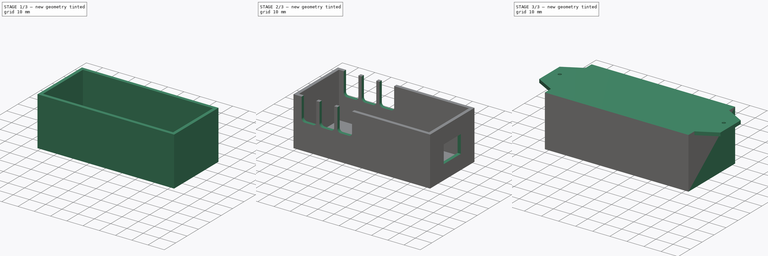
[diagram: build sequence overview — one tinted view per stage of 3, left to right]
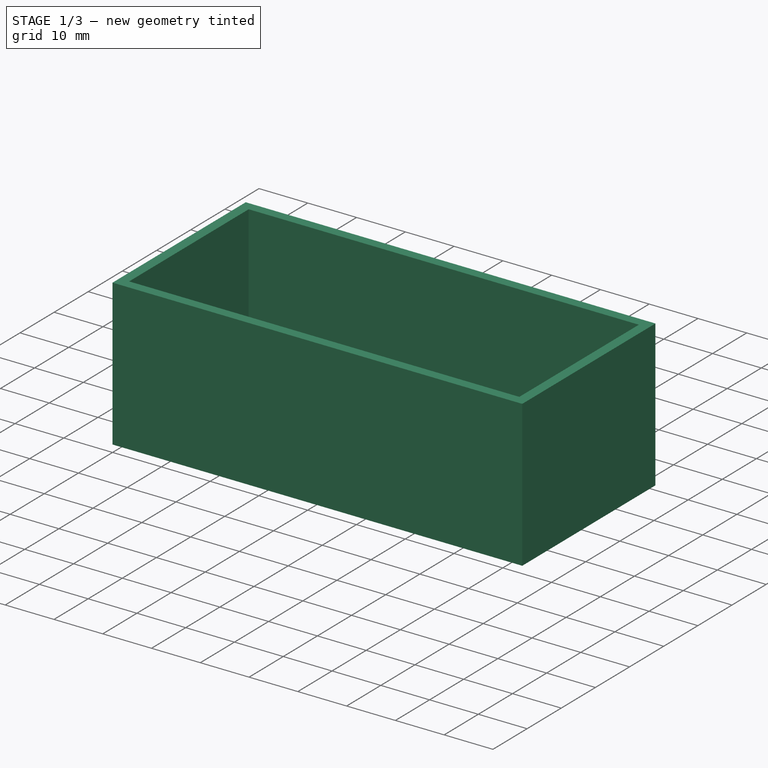
[diagram: stage 1 of 3 — iso view after this stage's code; geometry added in this stage tinted green]
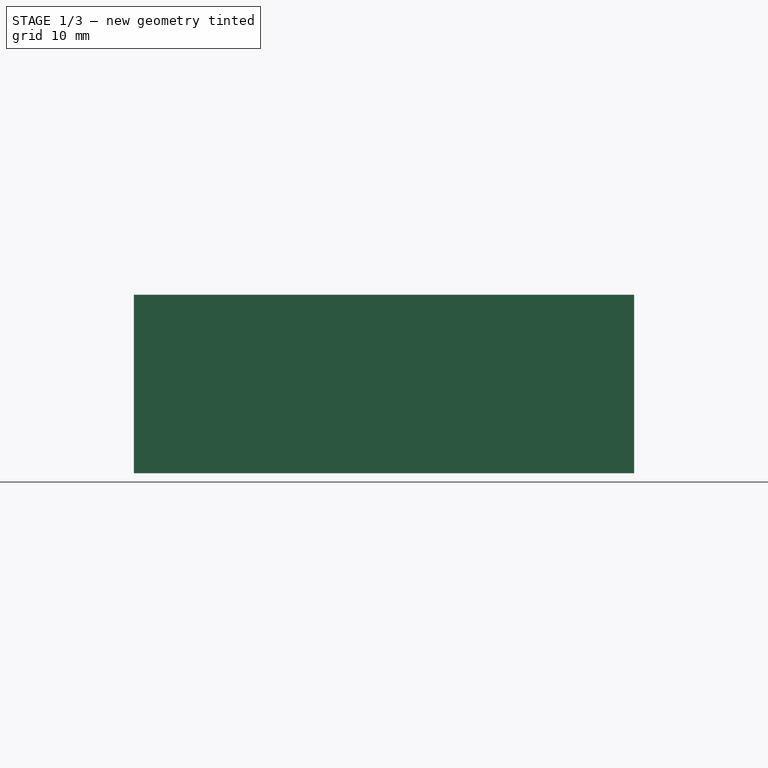
[diagram: stage 1 of 3 — front view after this stage's code; geometry added in this stage tinted green]
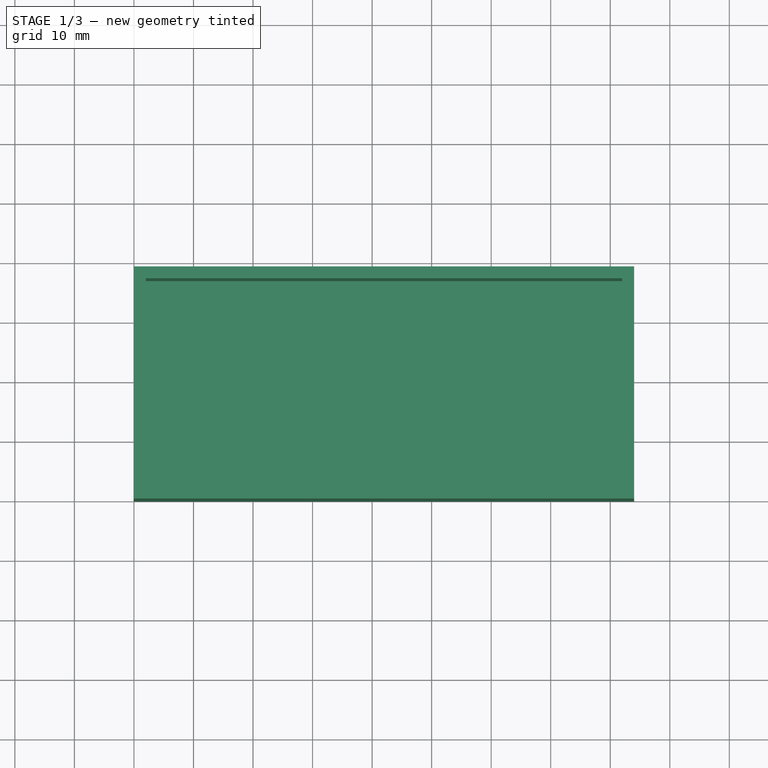
[diagram: stage 1 of 3 — top view after this stage's code; geometry added in this stage tinted green]
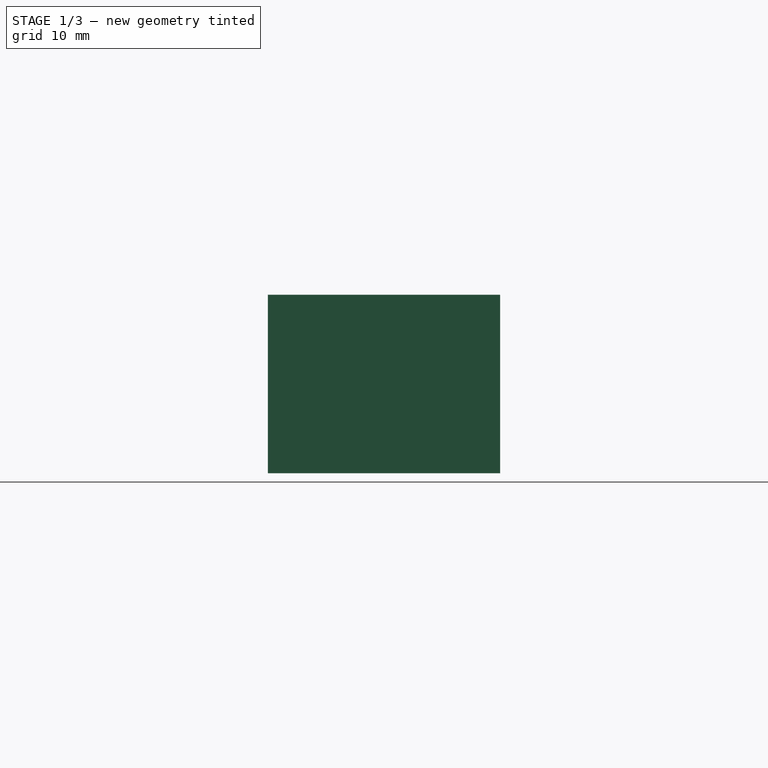
[diagram: stage 1 of 3 — right view after this stage's code; geometry added in this stage tinted green]
FCSTD DOCUMENT  (FreeCAD 0.20R)
Label: case
License: All rights reserved
LicenseURL: http://en.wikipedia.org/wiki/All_rights_reserved
objects: Sketcher::SketchObject×5, Part::Extrusion×3, PartDesign::Pocket×3, PartDesign::Body×2, PartDesign::FeatureBase×1, PartDesign::Fillet×1
note: 19 computed .brp shape members not serialized (recipe doc carries the construction recipe); baked Part::Feature solids carry a one-line shape summary decoded from their .brp

FEATURE [Sketcher::SketchObject] Sketch
  FullyConstrained = false
  MapMode = 5
  Support = -> [XY_Plane]
  sketch-geometry (4):
    g0: LineSegment StartX=0 StartY=0 StartZ=0 EndX=84 EndY=0 EndZ=0
    g1: LineSegment StartX=84 StartY=0 StartZ=0 EndX=84 EndY=39 EndZ=0
    g2: LineSegment StartX=84 StartY=39 StartZ=0 EndX=0 EndY=39 EndZ=0
    g3: LineSegment StartX=0 StartY=39 StartZ=0 EndX=0 EndY=0 EndZ=0
  constraints (9):
    c: Coincident(g0,g1)
    c: Coincident(g1,g2)
    c: Coincident(g2,g3)
    c: Coincident(g3,g0)
    c: Horizontal(g0)
    c: Horizontal(g2)
    c: Vertical(g1)
    c: Vertical(g3)
    c: Coincident(g0,g-1)
FEATURE [PartDesign::Body] Body
  Group = -> [Sketch]
  Origin = -> Origin
FEATURE [Part::Extrusion] Extrude
  Base = -> Sketch
  Dir = (0,0,1)
  DirMode = 2
  FaceMakerClass = Part::FaceMakerBullseye
  LengthFwd = 30
  LengthRev = 0
  Solid = true
  Symmetric = false
FEATURE [PartDesign::FeatureBase] BaseFeature
  BaseFeature = -> Extrude
FEATURE [Sketcher::SketchObject] Sketch001
  FullyConstrained = false
  MapMode = 5
  Placement = pos=(0,0,30) rot=(0,0,1;0rad)
  Support = -> [BaseFeature]
  sketch-geometry (4):
    g0: LineSegment StartX=2 StartY=37 StartZ=0 EndX=82 EndY=37 EndZ=0
    g1: LineSegment StartX=82 StartY=37 StartZ=0 EndX=82 EndY=2 EndZ=0
    g2: LineSegment StartX=82 StartY=2 StartZ=0 EndX=2 EndY=2 EndZ=0
    g3: LineSegment StartX=2 StartY=2 StartZ=0 EndX=2 EndY=37 EndZ=0
  constraints (8):
    c: Coincident(g0,g1)
    c: Coincident(g1,g2)
    c: Coincident(g2,g3)
    c: Coincident(g3,g0)
    c: Horizontal(g0)
    c: Horizontal(g2)
    c: Vertical(g1)
    c: Vertical(g3)
FEATURE [PartDesign::Pocket] Pocket
  BaseFeature = -> BaseFeature
  Direction = (0,0,-1)
  Length = 28
  Length2 = 5
  Profile = -> Sketch001
  ReferenceAxis = -> Sketch001 [N_Axis]
  Type = 0
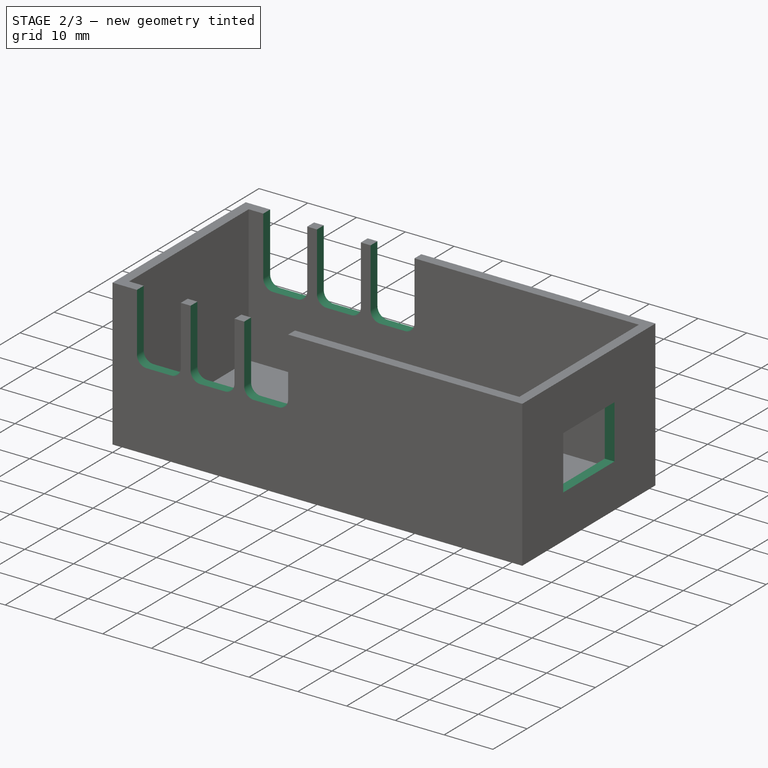
[diagram: stage 2 of 3 — iso view after this stage's code; geometry added in this stage tinted green]
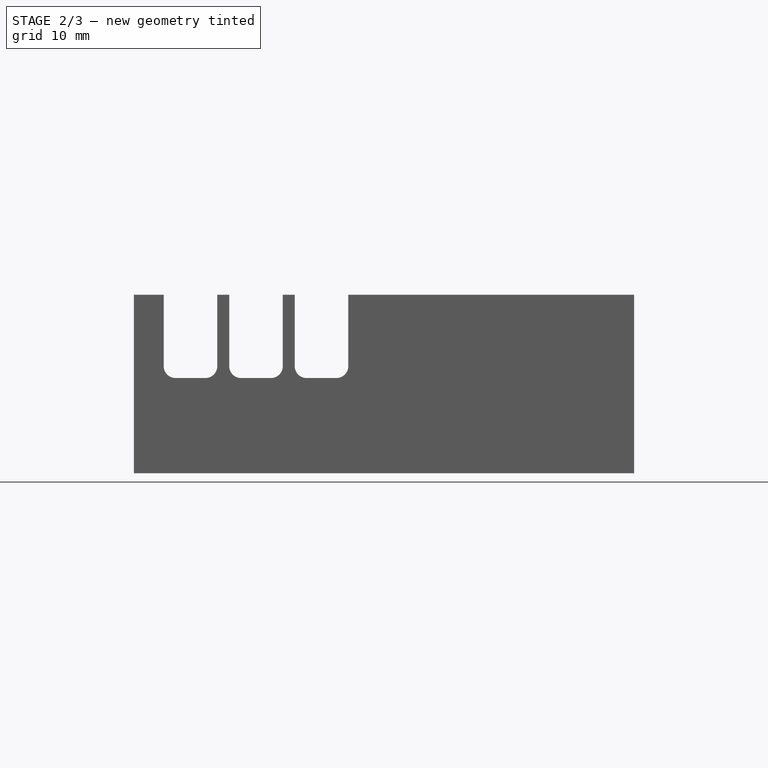
[diagram: stage 2 of 3 — front view after this stage's code; geometry added in this stage tinted green]
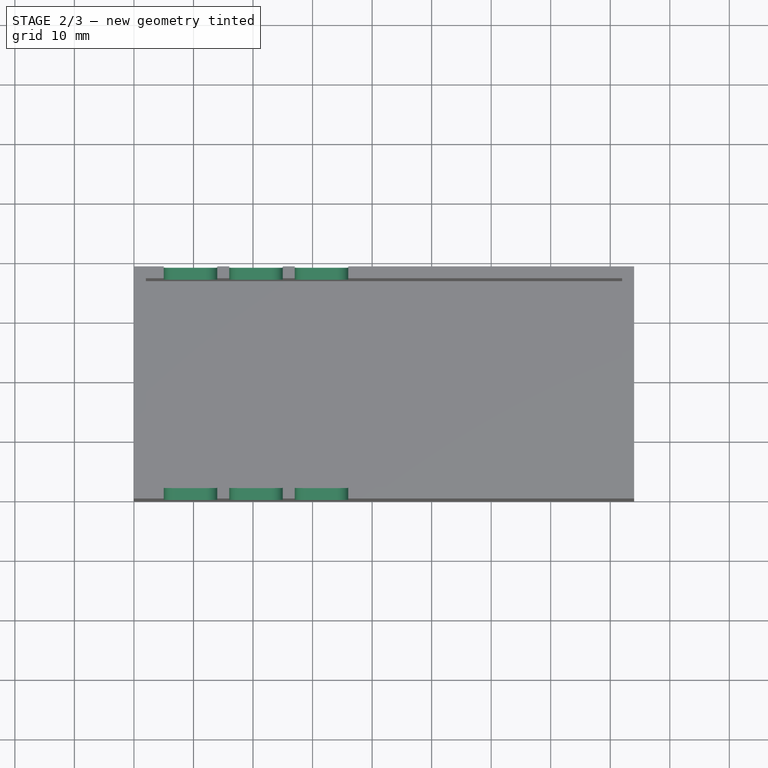
[diagram: stage 2 of 3 — top view after this stage's code; geometry added in this stage tinted green]
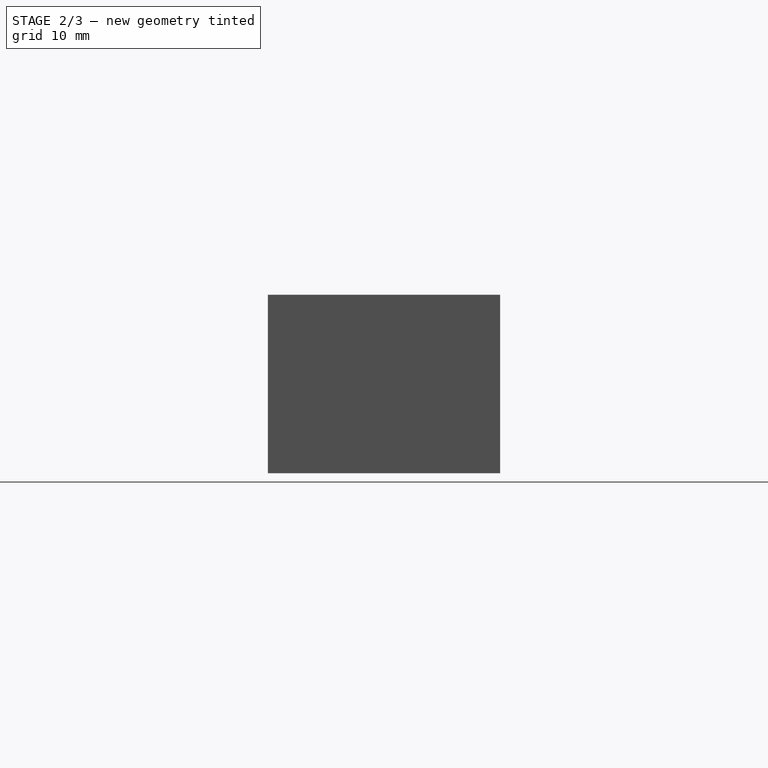
[diagram: stage 2 of 3 — right view after this stage's code; geometry added in this stage tinted green]
FEATURE [Sketcher::SketchObject] Sketch002
  FullyConstrained = false
  MapMode = 5
  Placement = pos=(84,0,0) rot=(0.57735,0.57735,0.57735;2.0944rad)
  Support = -> [Pocket]
  sketch-geometry (5):
    g0: LineSegment StartX=12 StartY=20 StartZ=0 EndX=27 EndY=20 EndZ=0
    g1: LineSegment StartX=27 StartY=20 StartZ=0 EndX=27 EndY=9 EndZ=0
    g2: LineSegment StartX=27 StartY=9 StartZ=0 EndX=12 EndY=9 EndZ=0
    g3: LineSegment StartX=12 StartY=9 StartZ=0 EndX=12 EndY=20 EndZ=0
    g4: GeomPoint X=39 Y=20 Z=0
  constraints (12):
    c: Coincident(g0,g1)
    c: Coincident(g1,g2)
    c: Coincident(g2,g3)
    c: Coincident(g3,g0)
    c: Horizontal(g0)
    c: Horizontal(g2)
    c: Vertical(g1)
    c: Vertical(g3)
    c: DistanceY(g-1,g2) = 9
    c: DistanceY(g-1,g0) = 20
    c: DistanceX(g-1,g0) = 12
    c: DistanceX(g-1,g0) = 27
FEATURE [PartDesign::Pocket] Pocket001
  BaseFeature = -> Pocket
  Direction = (-1,0,0)
  Length = 5
  Length2 = 5
  Profile = -> Sketch002
  ReferenceAxis = -> Sketch002 [N_Axis]
  Type = 2
FEATURE [Sketcher::SketchObject] Sketch003
  FullyConstrained = false
  MapMode = 5
  Placement = pos=(0,0,0) rot=(1,0,0;1.5708rad)
  Support = -> [Pocket001]
  sketch-geometry (18):
    g0: LineSegment StartX=5 StartY=30 StartZ=0 EndX=5 EndY=18 EndZ=0
    g1: ArcOfCircle CenterX=7 CenterY=18 CenterZ=0 NormalX=0 NormalY=0 NormalZ=1 AngleXU=0 Radius=2 StartAngle=3.14159 EndAngle=4.71239
    g2: LineSegment StartX=7 StartY=16 StartZ=0 EndX=12 EndY=16 EndZ=0
    g3: ArcOfCircle CenterX=12 CenterY=18 CenterZ=0 NormalX=0 NormalY=0 NormalZ=1 AngleXU=0 Radius=2 StartAngle=4.71239 EndAngle=6.28319
    g4: LineSegment StartX=14 StartY=18 StartZ=0 EndX=14 EndY=30 EndZ=0
    g5: LineSegment StartX=14 StartY=30 StartZ=0 EndX=5 EndY=30 EndZ=0
    g6: LineSegment StartX=16 StartY=30 StartZ=0 EndX=16 EndY=18 EndZ=0
    g7: LineSegment StartX=18 StartY=16 StartZ=0 EndX=23 EndY=16 EndZ=0
    g8: LineSegment StartX=25 StartY=18 StartZ=0 EndX=25 EndY=30 EndZ=0
    g9: LineSegment StartX=25 StartY=30 StartZ=0 EndX=16 EndY=30 EndZ=0
    g10: ArcOfCircle CenterX=23 CenterY=18 CenterZ=0 NormalX=0 NormalY=0 NormalZ=1 AngleXU=0 Radius=2 StartAngle=4.71239 EndAngle=6.28319
    g11: ArcOfCircle CenterX=18 CenterY=18 CenterZ=0 NormalX=0 NormalY=0 NormalZ=1 AngleXU=0 Radius=2 StartAngle=3.14159 EndAngle=4.71239
    g12: LineSegment StartX=27 StartY=30 StartZ=0 EndX=27 EndY=18 EndZ=0
    g13: LineSegment StartX=29 StartY=16 StartZ=0 EndX=34 EndY=16 EndZ=0
    g14: LineSegment StartX=36 StartY=18 StartZ=0 EndX=36 EndY=30 EndZ=0
    g15: LineSegment StartX=36 StartY=30 StartZ=0 EndX=27 EndY=30 EndZ=0
    g16: ArcOfCircle CenterX=34 CenterY=18 CenterZ=0 NormalX=0 NormalY=0 NormalZ=1 AngleXU=0 Radius=2 StartAngle=4.71239 EndAngle=6.28319
    g17: ArcOfCircle CenterX=29 CenterY=18 CenterZ=0 NormalX=0 NormalY=0 NormalZ=1 AngleXU=0 Radius=2 StartAngle=3.14159 EndAngle=4.71239
  constraints (29):
    c: Vertical(g0)
    c: Coincident(g1,g0)
    c: Coincident(g2,g1)
    c: Horizontal(g2)
    c: Tangent(g2,g1)
    c: Coincident(g3,g2)
    c: Coincident(g4,g3)
    c: Vertical(g4)
    c: Coincident(g5,g0)
    c: Horizontal(g5)
    c: Vertical(g6)
    c: Horizontal(g7)
    c: Vertical(g8)
    c: Coincident(g9,g8)
    c: Coincident(g9,g6)
    c: Horizontal(g9)
    c: Coincident(g10,g8)
    c: Coincident(g10,g7)
    c: Coincident(g11,g7)
    c: Coincident(g11,g6)
    c: Vertical(g12)
    c: Horizontal(g13)
    c: Vertical(g14)
    c: Coincident(g15,g12)
    c: Horizontal(g15)
    c: Coincident(g16,g14)
    c: Coincident(g16,g13)
    c: Coincident(g17,g13)
    c: Coincident(g17,g12)
FEATURE [PartDesign::Pocket] Pocket002
  BaseFeature = -> Pocket001
  Direction = (0,1,-2e-16)
  Length = 5
  Length2 = 5
  Profile = -> Sketch003
  ReferenceAxis = -> Sketch003 [N_Axis]
  Type = 1
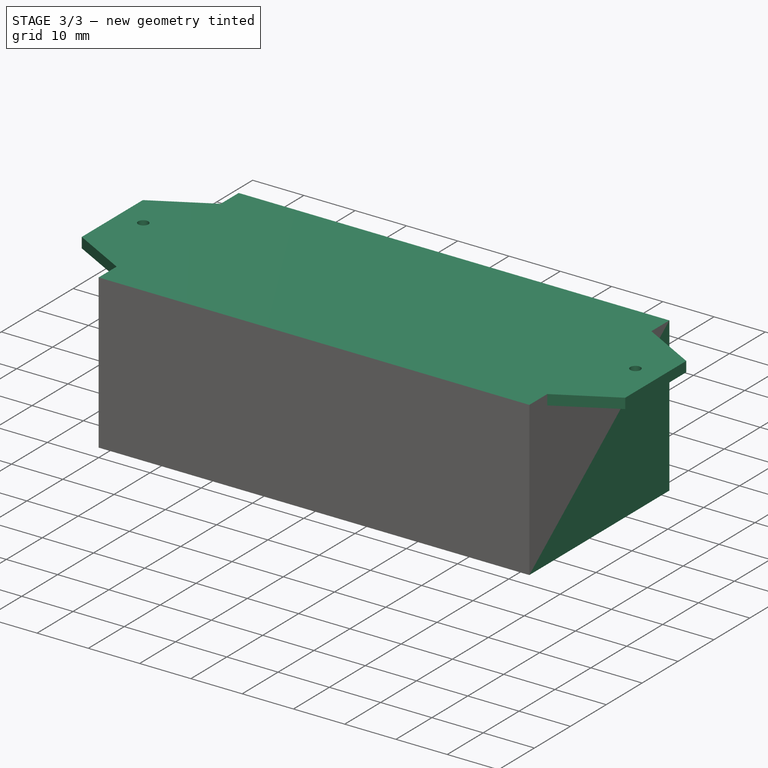
[diagram: stage 3 of 3 — iso view after this stage's code; geometry added in this stage tinted green]
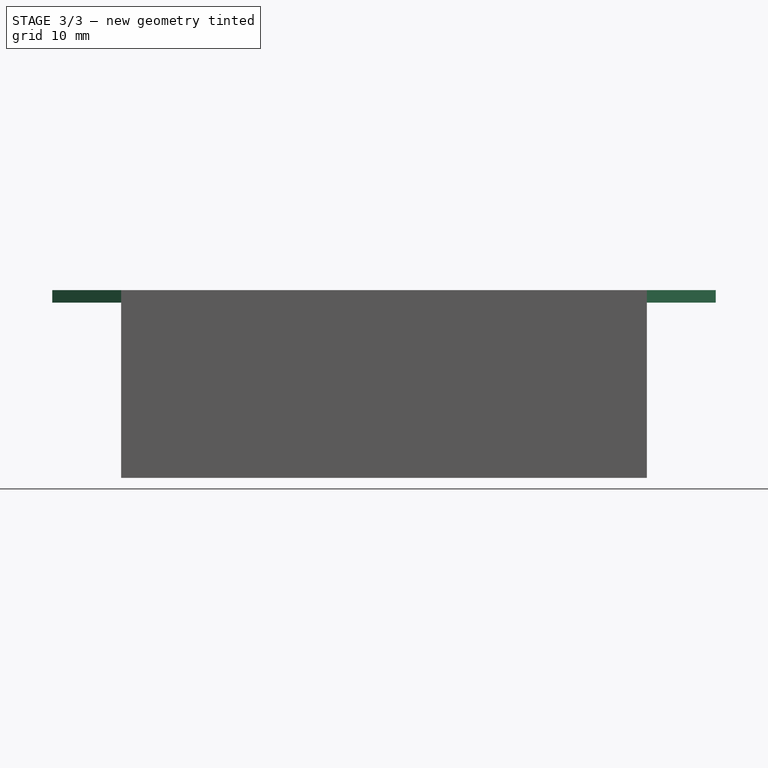
[diagram: stage 3 of 3 — front view after this stage's code; geometry added in this stage tinted green]
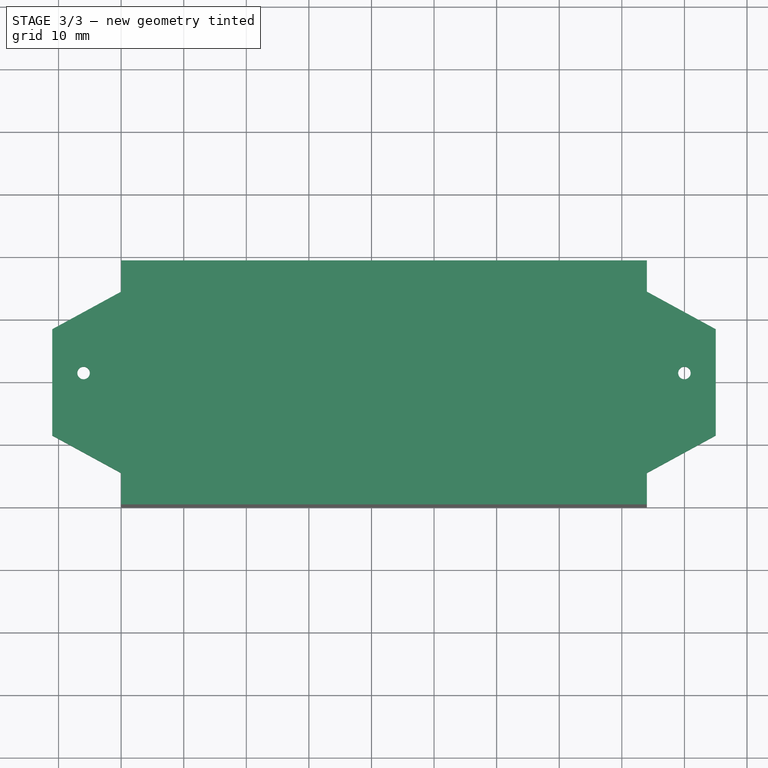
[diagram: stage 3 of 3 — top view after this stage's code; geometry added in this stage tinted green]
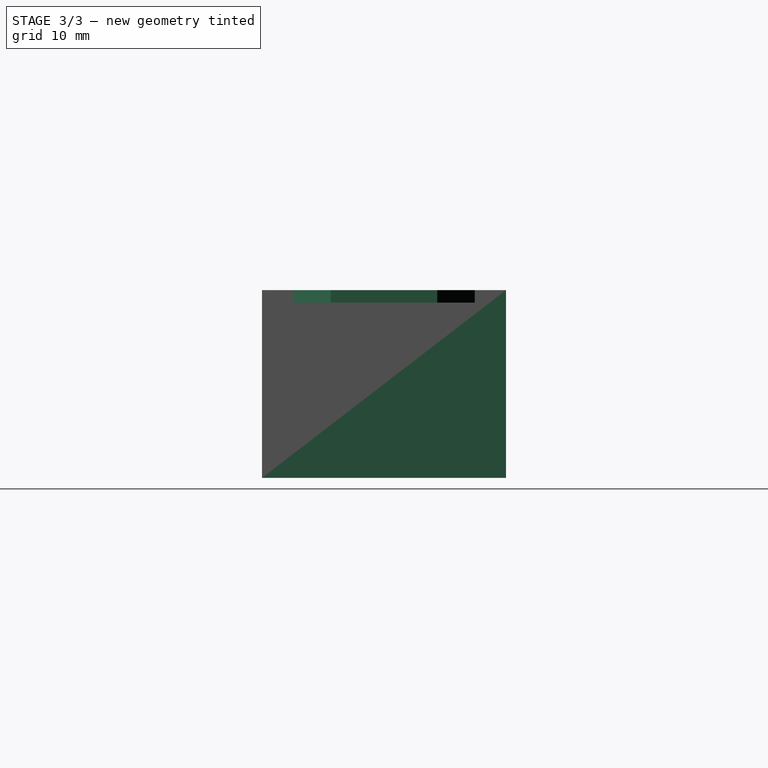
[diagram: stage 3 of 3 — right view after this stage's code; geometry added in this stage tinted green]
FEATURE [Part::Extrusion] Extrude001
  Base = -> Sketch
  Dir = (0,0,1)
  DirMode = 2
  FaceMakerClass = Part::FaceMakerBullseye
  LengthFwd = 30
  LengthRev = 0
  Solid = true
  Symmetric = false
FEATURE [PartDesign::Fillet] Fillet
  Base = -> Pocket002 [Edge22,Edge1,Edge25,Edge78,Edge24,Edge27,Edge23,Edge2]
  BaseFeature = -> Pocket002
  Radius = 1.5
  SupportTransform = false
  UseAllEdges = false
FEATURE [Sketcher::SketchObject] Sketch004
  FullyConstrained = false
  MapMode = 5
  Placement = pos=(0,0,30) rot=(0,0,1;0rad)
  Support = -> [Fillet]
  sketch-geometry (11):
    g0: LineSegment StartX=42 StartY=49 StartZ=0 EndX=42 EndY=-6 EndZ=0
    g1: LineSegment StartX=84 StartY=34 StartZ=0 EndX=84 EndY=5 EndZ=0
    g2: LineSegment StartX=84 StartY=5 StartZ=0 EndX=95 EndY=11 EndZ=0
    g3: LineSegment StartX=84 StartY=34 StartZ=0 EndX=95 EndY=28 EndZ=0
    g4: LineSegment StartX=95 StartY=28 StartZ=0 EndX=95 EndY=11 EndZ=0
    g5: Circle CenterX=90 CenterY=21 CenterZ=0 NormalX=0 NormalY=0 NormalZ=1 AngleXU=0 Radius=1
    g6: LineSegment StartX=0 StartY=34 StartZ=0 EndX=0 EndY=5 EndZ=0
    g7: LineSegment StartX=0 StartY=5 StartZ=0 EndX=-11 EndY=11 EndZ=0
    g8: LineSegment StartX=0 StartY=34 StartZ=0 EndX=-11 EndY=28 EndZ=0
    g9: LineSegment StartX=-11 StartY=28 StartZ=0 EndX=-11 EndY=11 EndZ=0
    g10: Circle CenterX=-6 CenterY=21 CenterZ=0 NormalX=0 NormalY=0 NormalZ=1 AngleXU=0 Radius=1
  constraints (12):
    c: Vertical(g0)
    c: DistanceX(g-1,g0) = 42
    c: Vertical(g1)
    c: Coincident(g2,g1)
    c: Coincident(g3,g1)
    c: Coincident(g4,g2)
    c: Vertical(g4)
    c: Vertical(g6)
    c: Coincident(g7,g6)
    c: Coincident(g8,g6)
    c: Coincident(g9,g7)
    c: Vertical(g9)
FEATURE [PartDesign::Body] Body001
  BaseFeature = -> Extrude
  Group = -> [BaseFeature,Sketch001,Pocket,Sketch002,Pocket001,Sketch003,Pocket002,Fillet,Sketch004]
  Origin = -> Origin001
  Tip = -> Fillet
FEATURE [Part::Extrusion] Extrude002
  Base = -> Sketch004
  Dir = (0,0,1)
  DirMode = 2
  FaceMakerClass = Part::FaceMakerBullseye
  LengthFwd = -2
  LengthRev = 0
  Solid = true
  Symmetric = false
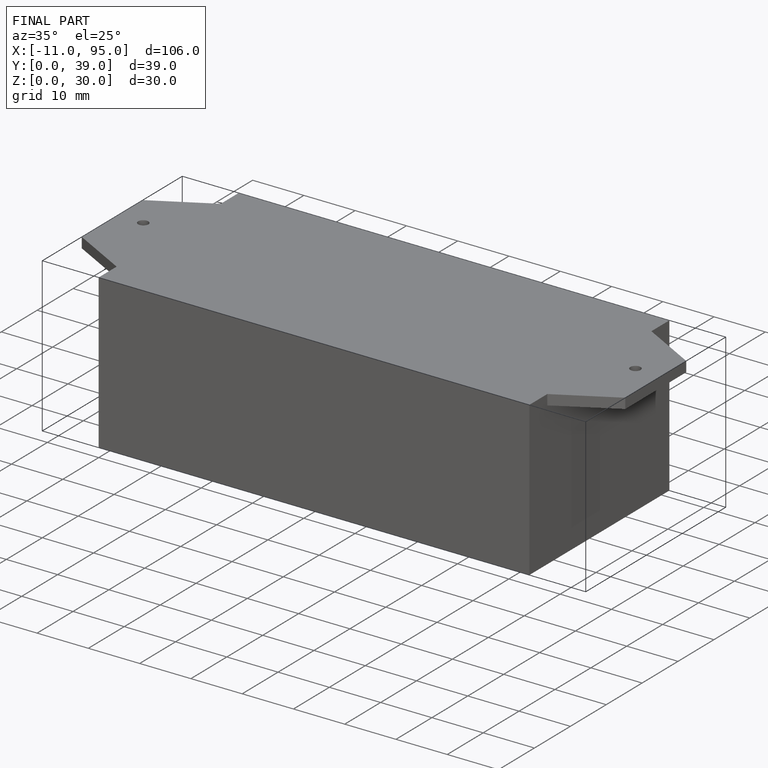
[diagram: finished part — iso view with bounding-box wireframe]
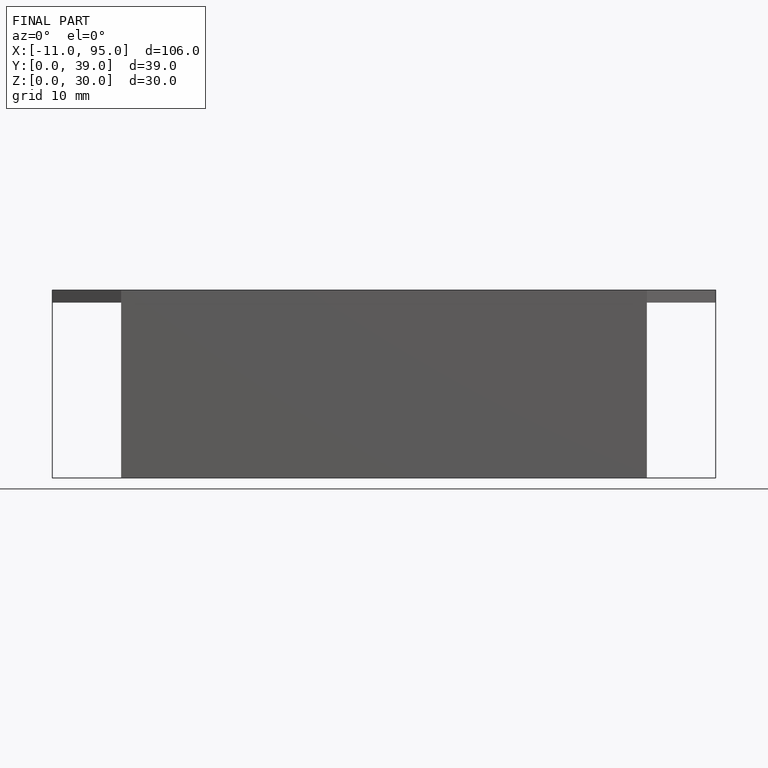
[diagram: finished part — front view with bounding-box wireframe]
